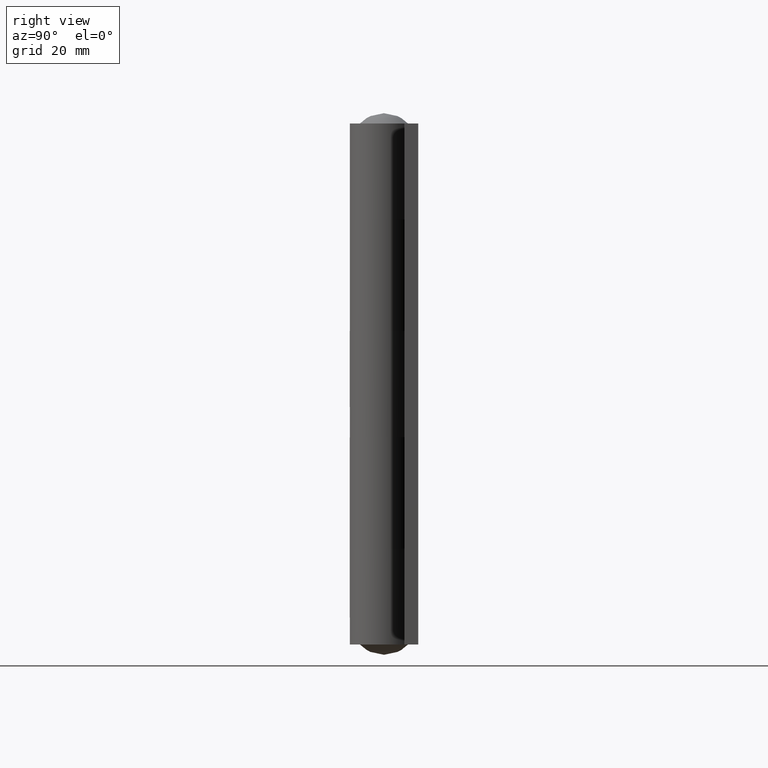
[diagram: clean part render]
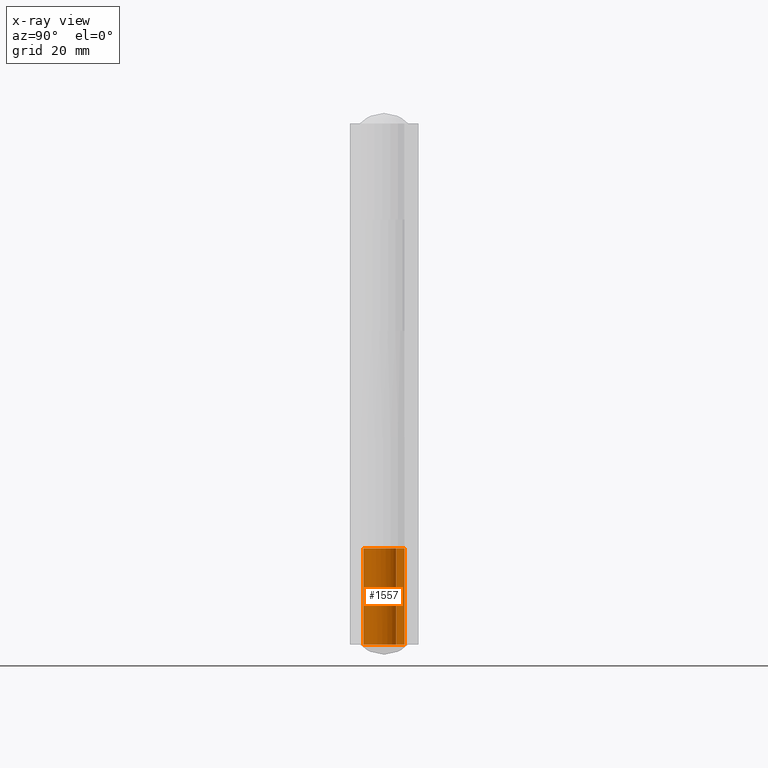
[diagram: x-ray — body ghosted, one internal face saturated and labeled with its STEP entity id]
A machine part, right view, then the same camera in x-ray: the body is ghosted and one INTERNAL B-rep face — a face not visible from any outside direction — is saturated and labeled: STEP entity #1557.
In plain terms, the highlighted face is a freeform B-spline surface patch.
Its self-contained STEP definition (entity closure, byte-faithful):
#895=CARTESIAN_POINT('',(4.822354196862770,3.570000000000000,28.0));
#896=VERTEX_POINT('',#895);
#902=CARTESIAN_POINT('',(0.0,6.0,28.0));
#903=VERTEX_POINT('',#902);
#904=CARTESIAN_POINT('',(0.0,6.0,28.0));
#905=CARTESIAN_POINT('',(-4.740908855256678,6.000000000000001,27.999999999999996));
#906=CARTESIAN_POINT('',(-5.837337919766388,1.387618827508989,28.0));
#907=CARTESIAN_POINT('',(-6.933766984276097,-3.224762344982018,27.999999999999996));
#908=CARTESIAN_POINT('',(-2.700000000000003,-5.358171329847524,28.0));
#909=CARTESIAN_POINT('',(1.533766984276091,-7.491580314713031,27.999999999999996));
#910=CARTESIAN_POINT('',(4.588480975008292,-3.865985300280764,28.0));
#911=CARTESIAN_POINT('',(7.643194965740497,-0.240390285848494,27.999999999999996));
#912=CARTESIAN_POINT('',(4.822354196862777,3.569999999999996,28.0));
#920=(BOUNDED_CURVE()B_SPLINE_CURVE(2,(#904,#905,#906,#907,#908,#909,#910,#911,#912),.UNSPECIFIED.,.F.,.U.)B_SPLINE_CURVE_WITH_KNOTS((3,2,2,2,3),(0.0,0.250000000000000,0.500000000000000,0.750000000000000,1.0),.UNSPECIFIED.)CURVE()GEOMETRIC_REPRESENTATION_ITEM()RATIONAL_B_SPLINE_CURVE((1.0,0.784624051563815,1.0,0.784624051563815,1.0,0.784624051563815,1.0,0.784624051563815,1.0))REPRESENTATION_ITEM(''));
#921=EDGE_CURVE('',#903,#896,#920,.T.);
#1155=CARTESIAN_POINT('',(0.0,6.0,0.0));
#1156=VERTEX_POINT('',#1155);
#1162=CARTESIAN_POINT('',(4.822354196862770,3.570000000000000,0.0));
#1163=VERTEX_POINT('',#1162);
#1164=CARTESIAN_POINT('',(4.822354196862771,3.570000000000003,0.0));
#1165=CARTESIAN_POINT('',(7.643194965740499,-0.240390285848483,0.0));
#1166=CARTESIAN_POINT('',(4.588480975008299,-3.865985300280757,0.0));
#1167=CARTESIAN_POINT('',(1.533766984276102,-7.491580314713029,0.0));
#1168=CARTESIAN_POINT('',(-2.699999999999995,-5.358171329847528,0.0));
#1169=CARTESIAN_POINT('',(-6.933766984276095,-3.224762344982026,0.0));
#1170=CARTESIAN_POINT('',(-5.837337919766389,1.387618827508986,0.0));
#1171=CARTESIAN_POINT('',(-4.740908855256683,6.000000000000001,0.0));
#1172=CARTESIAN_POINT('',(0.0,6.0,0.0));
#1180=(BOUNDED_CURVE()B_SPLINE_CURVE(2,(#1164,#1165,#1166,#1167,#1168,#1169,#1170,#1171,#1172),.UNSPECIFIED.,.F.,.U.)B_SPLINE_CURVE_WITH_KNOTS((3,2,2,2,3),(0.0,0.250000000000000,0.500000000000000,0.750000000000000,1.0),.UNSPECIFIED.)CURVE()GEOMETRIC_REPRESENTATION_ITEM()RATIONAL_B_SPLINE_CURVE((1.0,0.784624051563815,1.0,0.784624051563815,1.0,0.784624051563815,1.0,0.784624051563815,1.0))REPRESENTATION_ITEM(''));
#1181=EDGE_CURVE('',#1163,#1156,#1180,.T.);
#1328=CARTESIAN_POINT('',(0.0,6.0,28.0));
#1329=CARTESIAN_POINT('',(0.0,6.0,0.0));
#1330=QUASI_UNIFORM_CURVE('',1,(#1328,#1329),.UNSPECIFIED.,.F.,.U.);
#1331=EDGE_CURVE('',#903,#1156,#1330,.T.);
#1521=CARTESIAN_POINT('',(4.822354196862770,3.570000000000000,28.0));
#1522=CARTESIAN_POINT('',(4.822354196862770,3.570000000000000,0.0));
#1523=QUASI_UNIFORM_CURVE('',1,(#1521,#1522),.UNSPECIFIED.,.F.,.U.);
#1524=EDGE_CURVE('',#896,#1163,#1523,.T.);
#1529=CARTESIAN_POINT('',(0.052359212990238,5.999771538385026,28.699999999999999));
#1530=CARTESIAN_POINT('',(0.052359212990238,5.999771538385026,-0.717500000000001));
#1531=CARTESIAN_POINT('',(-7.535588988787675,6.065990559145063,28.700000000000006));
#1532=CARTESIAN_POINT('',(-7.535588988787675,6.065990559145063,-0.717500000000001));
#1533=CARTESIAN_POINT('',(-5.850121785571501,-1.332694673952623,28.699999999999999));
#1534=CARTESIAN_POINT('',(-5.850121785571501,-1.332694673952623,-0.717500000000001));
#1535=CARTESIAN_POINT('',(-4.164654582355328,-8.731379907050309,28.700000000000006));
#1536=CARTESIAN_POINT('',(-4.164654582355328,-8.731379907050309,-0.717500000000001));
#1537=CARTESIAN_POINT('',(2.645902646067539,-5.385090453050234,28.699999999999999));
#1538=CARTESIAN_POINT('',(2.645902646067539,-5.385090453050234,-0.717500000000001));
#1539=CARTESIAN_POINT('',(9.456459874490406,-2.038800999050162,28.700000000000006));
#1540=CARTESIAN_POINT('',(9.456459874490406,-2.038800999050162,-0.717500000000001));
#1541=CARTESIAN_POINT('',(4.629747500326318,3.816469321666581,28.699999999999999));
#1542=CARTESIAN_POINT('',(4.629747500326318,3.816469321666581,-0.717500000000001));
#1550=(BOUNDED_SURFACE()B_SPLINE_SURFACE(1,2,((#1529,#1531,#1533,#1535,#1537,#1539,#1541),(#1530,#1532,#1534,#1536,#1538,#1540,#1542)),.UNSPECIFIED.,.F.,.F.,.U.)B_SPLINE_SURFACE_WITH_KNOTS((2,2),(3,2,2,3),(0.0,29.417500000000000),(0.0,11.619283776664791,23.238567553329592,34.857851329994382),.UNSPECIFIED.)GEOMETRIC_REPRESENTATION_ITEM()RATIONAL_B_SPLINE_SURFACE(((1.0,0.620235491268260,1.0,0.620235491268260,1.0,0.620235491268260,1.0),(1.0,0.620235491268260,1.0,0.620235491268260,1.0,0.620235491268260,1.0)))REPRESENTATION_ITEM('')SURFACE());
#1551=ORIENTED_EDGE('',*,*,#1331,.F.);
#1552=ORIENTED_EDGE('',*,*,#921,.T.);
#1553=ORIENTED_EDGE('',*,*,#1524,.T.);
#1554=ORIENTED_EDGE('',*,*,#1181,.T.);
#1555=EDGE_LOOP('',(#1551,#1552,#1553,#1554));
#1556=FACE_OUTER_BOUND('',#1555,.T.);
#1557=ADVANCED_FACE('',(#1556),#1550,.F.);